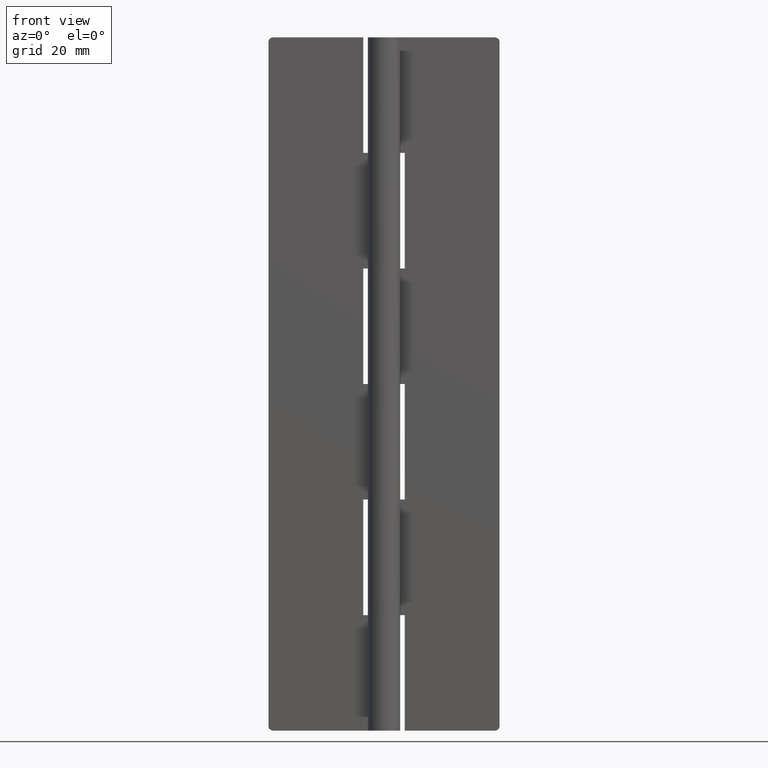
[diagram: clean part render]
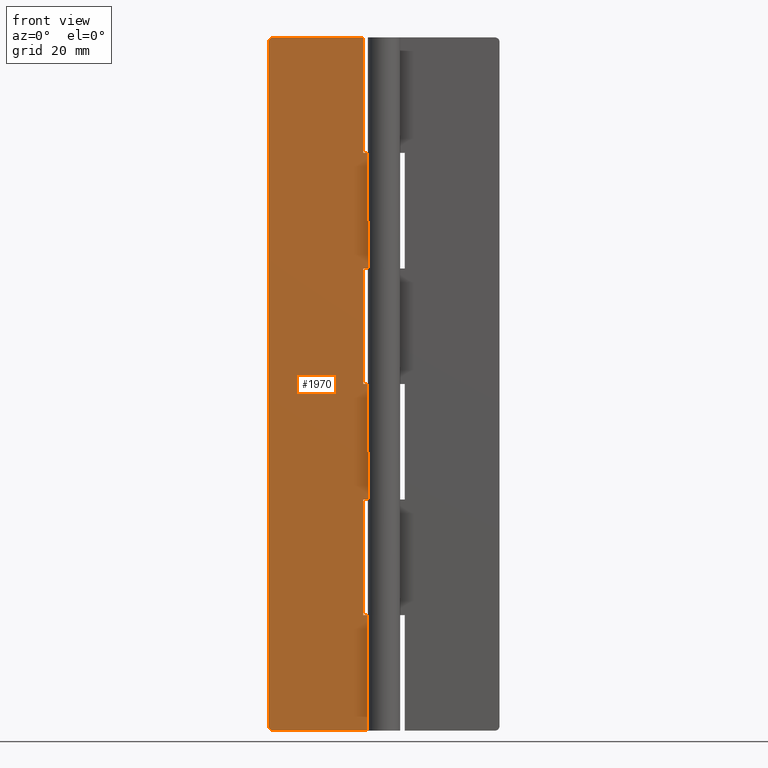
[diagram: same view with one face highlighted and labeled with its STEP entity id]
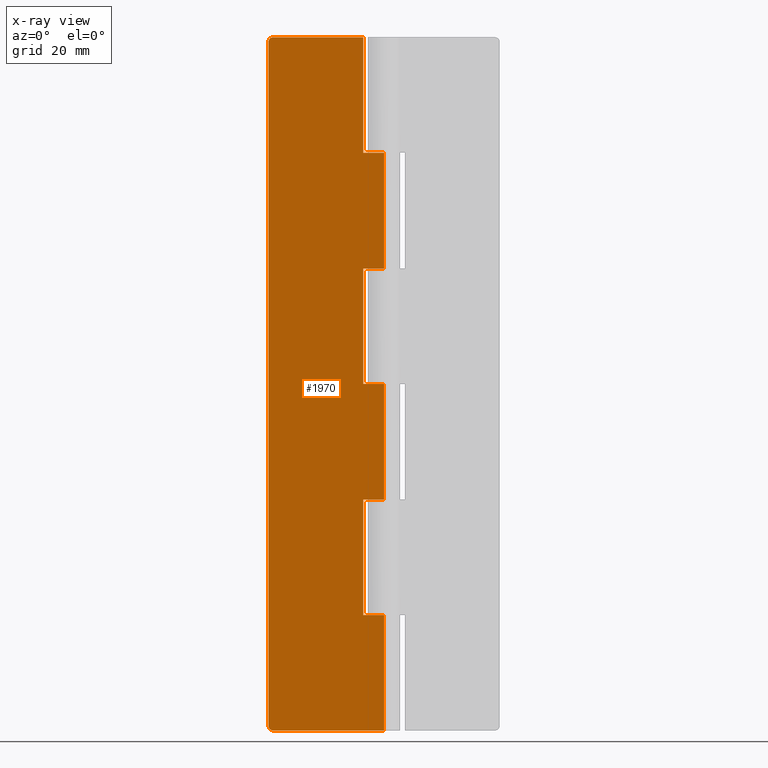
[diagram: x-ray of the same camera — body ghosted, the highlighted face saturated]
A machine part, front view. The second image highlights one B-rep face of the part: STEP entity #1970.
The next image is the same camera in x-ray: the body ghosted, the highlighted face saturated — about 0% of this face is hidden behind the body in this view.
In plain terms, the highlighted face is a freeform B-spline surface patch.
Its self-contained STEP definition (entity closure, byte-faithful):
#1095=CARTESIAN_POINT('',(-24.0,2.0,150.000008000000010));
#1096=VERTEX_POINT('',#1095);
#1097=CARTESIAN_POINT('',(-25.0,2.0,149.000007999999810));
#1098=VERTEX_POINT('',#1097);
#1099=CARTESIAN_POINT('',(-24.0,2.0,150.000007999999810));
#1100=CARTESIAN_POINT('',(-25.0,2.000000000000000,150.000007999999890));
#1101=CARTESIAN_POINT('',(-25.0,2.0,149.000007999999810));
#1109=(BOUNDED_CURVE()B_SPLINE_CURVE(2,(#1099,#1100,#1101),.UNSPECIFIED.,.F.,.U.)CURVE()GEOMETRIC_REPRESENTATION_ITEM()QUASI_UNIFORM_CURVE()RATIONAL_B_SPLINE_CURVE((1.0,0.707106781186548,1.0))REPRESENTATION_ITEM(''));
#1110=EDGE_CURVE('',#1096,#1098,#1109,.T.);
#1156=CARTESIAN_POINT('',(-25.0,2.0,1.0));
#1157=VERTEX_POINT('',#1156);
#1158=CARTESIAN_POINT('',(-24.0,2.0,0.0));
#1159=VERTEX_POINT('',#1158);
#1160=CARTESIAN_POINT('',(-25.0,2.0,1.0));
#1161=CARTESIAN_POINT('',(-25.0,2.000000000000000,0.0));
#1162=CARTESIAN_POINT('',(-24.0,2.0,0.0));
#1170=(BOUNDED_CURVE()B_SPLINE_CURVE(2,(#1160,#1161,#1162),.UNSPECIFIED.,.F.,.U.)CURVE()GEOMETRIC_REPRESENTATION_ITEM()QUASI_UNIFORM_CURVE()RATIONAL_B_SPLINE_CURVE((1.0,0.707106781186548,1.0))REPRESENTATION_ITEM(''));
#1171=EDGE_CURVE('',#1157,#1159,#1170,.T.);
#1217=CARTESIAN_POINT('',(-4.499999999999900,2.0,125.0));
#1218=VERTEX_POINT('',#1217);
#1224=CARTESIAN_POINT('',(1.224624E-016,2.0,125.0));
#1225=VERTEX_POINT('',#1224);
#1226=CARTESIAN_POINT('',(1.224624E-016,2.0,125.0));
#1227=CARTESIAN_POINT('',(-4.499999999999900,2.0,125.0));
#1228=QUASI_UNIFORM_CURVE('',1,(#1226,#1227),.UNSPECIFIED.,.F.,.U.);
#1229=EDGE_CURVE('',#1225,#1218,#1228,.T.);
#1294=CARTESIAN_POINT('',(-4.499999999999900,2.0,150.000008000000010));
#1295=VERTEX_POINT('',#1294);
#1301=CARTESIAN_POINT('',(-4.499999999999900,2.0,125.0));
#1302=CARTESIAN_POINT('',(-4.499999999999900,2.0,150.000008000000010));
#1303=QUASI_UNIFORM_CURVE('',1,(#1301,#1302),.UNSPECIFIED.,.F.,.U.);
#1304=EDGE_CURVE('',#1218,#1295,#1303,.T.);
#1344=CARTESIAN_POINT('',(1.224606E-016,2.0,100.000007999999990));
#1345=VERTEX_POINT('',#1344);
#1365=CARTESIAN_POINT('',(-4.499999999999900,2.0,100.000007999999990));
#1366=VERTEX_POINT('',#1365);
#1367=CARTESIAN_POINT('',(-4.499999999999900,2.0,100.000007999999990));
#1368=CARTESIAN_POINT('',(1.224606E-016,2.0,100.000007999999990));
#1369=QUASI_UNIFORM_CURVE('',1,(#1367,#1368),.UNSPECIFIED.,.F.,.U.);
#1370=EDGE_CURVE('',#1366,#1345,#1369,.T.);
#1401=CARTESIAN_POINT('',(-4.499999999999900,2.0,75.0));
#1402=VERTEX_POINT('',#1401);
#1408=CARTESIAN_POINT('',(1.224624E-016,2.0,75.0));
#1409=VERTEX_POINT('',#1408);
#1410=CARTESIAN_POINT('',(1.224624E-016,2.0,75.0));
#1411=CARTESIAN_POINT('',(-4.499999999999900,2.0,75.0));
#1412=QUASI_UNIFORM_CURVE('',1,(#1410,#1411),.UNSPECIFIED.,.F.,.U.);
#1413=EDGE_CURVE('',#1409,#1402,#1412,.T.);
#1477=CARTESIAN_POINT('',(-4.499999999999900,2.0,75.0));
#1478=CARTESIAN_POINT('',(-4.499999999999900,2.0,100.000007999999990));
#1479=QUASI_UNIFORM_CURVE('',1,(#1477,#1478),.UNSPECIFIED.,.F.,.U.);
#1480=EDGE_CURVE('',#1402,#1366,#1479,.T.);
#1520=CARTESIAN_POINT('',(1.224606E-016,2.0,50.000008000000001));
#1521=VERTEX_POINT('',#1520);
#1541=CARTESIAN_POINT('',(-4.499999999999900,2.0,50.000008000000001));
#1542=VERTEX_POINT('',#1541);
#1543=CARTESIAN_POINT('',(-4.499999999999900,2.0,50.000008000000001));
#1544=CARTESIAN_POINT('',(1.224606E-016,2.0,50.000008000000001));
#1545=QUASI_UNIFORM_CURVE('',1,(#1543,#1544),.UNSPECIFIED.,.F.,.U.);
#1546=EDGE_CURVE('',#1542,#1521,#1545,.T.);
#1577=CARTESIAN_POINT('',(-4.499999999999900,2.0,25.0));
#1578=VERTEX_POINT('',#1577);
#1584=CARTESIAN_POINT('',(1.224624E-016,2.0,25.0));
#1585=VERTEX_POINT('',#1584);
#1586=CARTESIAN_POINT('',(1.224624E-016,2.0,25.0));
#1587=CARTESIAN_POINT('',(-4.499999999999900,2.0,25.0));
#1588=QUASI_UNIFORM_CURVE('',1,(#1586,#1587),.UNSPECIFIED.,.F.,.U.);
#1589=EDGE_CURVE('',#1585,#1578,#1588,.T.);
#1653=CARTESIAN_POINT('',(-4.499999999999900,2.0,25.0));
#1654=CARTESIAN_POINT('',(-4.499999999999900,2.0,50.000008000000001));
#1655=QUASI_UNIFORM_CURVE('',1,(#1653,#1654),.UNSPECIFIED.,.F.,.U.);
#1656=EDGE_CURVE('',#1578,#1542,#1655,.T.);
#1666=CARTESIAN_POINT('',(1.224606E-016,2.0,0.0));
#1667=VERTEX_POINT('',#1666);
#1668=CARTESIAN_POINT('',(1.224606E-016,2.0,0.0));
#1669=CARTESIAN_POINT('',(-24.0,2.0,0.0));
#1670=QUASI_UNIFORM_CURVE('',1,(#1668,#1669),.UNSPECIFIED.,.F.,.U.);
#1671=EDGE_CURVE('',#1667,#1159,#1670,.T.);
#1742=CARTESIAN_POINT('',(-25.0,2.0,149.000007999999810));
#1743=CARTESIAN_POINT('',(-25.0,2.0,1.0));
#1744=QUASI_UNIFORM_CURVE('',1,(#1742,#1743),.UNSPECIFIED.,.F.,.U.);
#1745=EDGE_CURVE('',#1098,#1157,#1744,.T.);
#1774=CARTESIAN_POINT('',(1.224624E-016,2.0,25.0));
#1775=CARTESIAN_POINT('',(1.224606E-016,2.0,0.0));
#1776=QUASI_UNIFORM_CURVE('',1,(#1774,#1775),.UNSPECIFIED.,.F.,.U.);
#1777=EDGE_CURVE('',#1585,#1667,#1776,.T.);
#1860=CARTESIAN_POINT('',(1.224624E-016,2.0,75.0));
#1861=CARTESIAN_POINT('',(1.224606E-016,2.0,50.000008000000001));
#1862=QUASI_UNIFORM_CURVE('',1,(#1860,#1861),.UNSPECIFIED.,.F.,.U.);
#1863=EDGE_CURVE('',#1409,#1521,#1862,.T.);
#1934=CARTESIAN_POINT('',(-4.499999999999900,2.0,150.000008000000010));
#1935=CARTESIAN_POINT('',(-24.0,2.0,150.000008000000010));
#1936=QUASI_UNIFORM_CURVE('',1,(#1934,#1935),.UNSPECIFIED.,.F.,.U.);
#1937=EDGE_CURVE('',#1295,#1096,#1936,.T.);
#1943=CARTESIAN_POINT('',(-26.248749951545150,2.0,157.492516557427390));
#1944=CARTESIAN_POINT('',(-26.248749951545150,2.0,-7.492504534113652));
#1945=CARTESIAN_POINT('',(1.248750622097403,2.0,157.492516557427390));
#1946=CARTESIAN_POINT('',(1.248750622097403,2.0,-7.492504534113652));
#1947=B_SPLINE_SURFACE_WITH_KNOTS('',1,1,((#1943,#1945),(#1944,#1946)),.UNSPECIFIED.,.F.,.F.,.U.,(2,2),(2,2),(0.0,164.985021091541000),(0.0,27.497500573642551),.UNSPECIFIED.);
#1948=ORIENTED_EDGE('',*,*,#1745,.T.);
#1949=ORIENTED_EDGE('',*,*,#1171,.T.);
#1950=ORIENTED_EDGE('',*,*,#1671,.F.);
#1951=ORIENTED_EDGE('',*,*,#1777,.F.);
#1952=ORIENTED_EDGE('',*,*,#1589,.T.);
#1953=ORIENTED_EDGE('',*,*,#1656,.T.);
#1954=ORIENTED_EDGE('',*,*,#1546,.T.);
#1955=ORIENTED_EDGE('',*,*,#1863,.F.);
#1956=ORIENTED_EDGE('',*,*,#1413,.T.);
#1957=ORIENTED_EDGE('',*,*,#1480,.T.);
#1958=ORIENTED_EDGE('',*,*,#1370,.T.);
#1959=CARTESIAN_POINT('',(1.224624E-016,2.0,125.0));
#1960=CARTESIAN_POINT('',(1.224606E-016,2.0,100.000007999999990));
#1961=QUASI_UNIFORM_CURVE('',1,(#1959,#1960),.UNSPECIFIED.,.F.,.U.);
#1962=EDGE_CURVE('',#1225,#1345,#1961,.T.);
#1963=ORIENTED_EDGE('',*,*,#1962,.F.);
#1964=ORIENTED_EDGE('',*,*,#1229,.T.);
#1965=ORIENTED_EDGE('',*,*,#1304,.T.);
#1966=ORIENTED_EDGE('',*,*,#1937,.T.);
#1967=ORIENTED_EDGE('',*,*,#1110,.T.);
#1968=EDGE_LOOP('',(#1948,#1949,#1950,#1951,#1952,#1953,#1954,#1955,#1956,#1957,#1958,#1963,#1964,#1965,#1966,#1967));
#1969=FACE_OUTER_BOUND('',#1968,.T.);
#1970=ADVANCED_FACE('',(#1969),#1947,.T.);